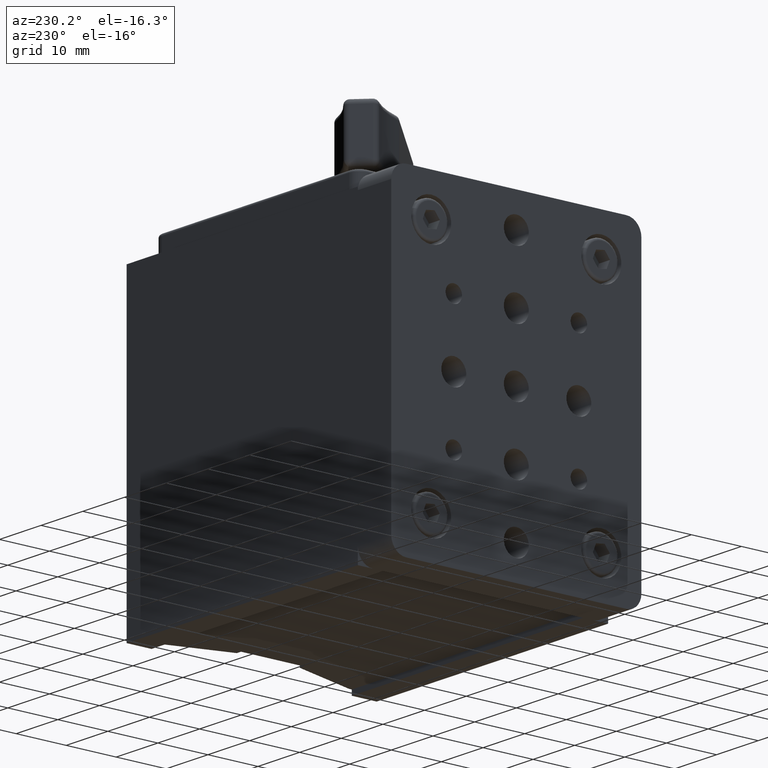
[diagram: clean part render]
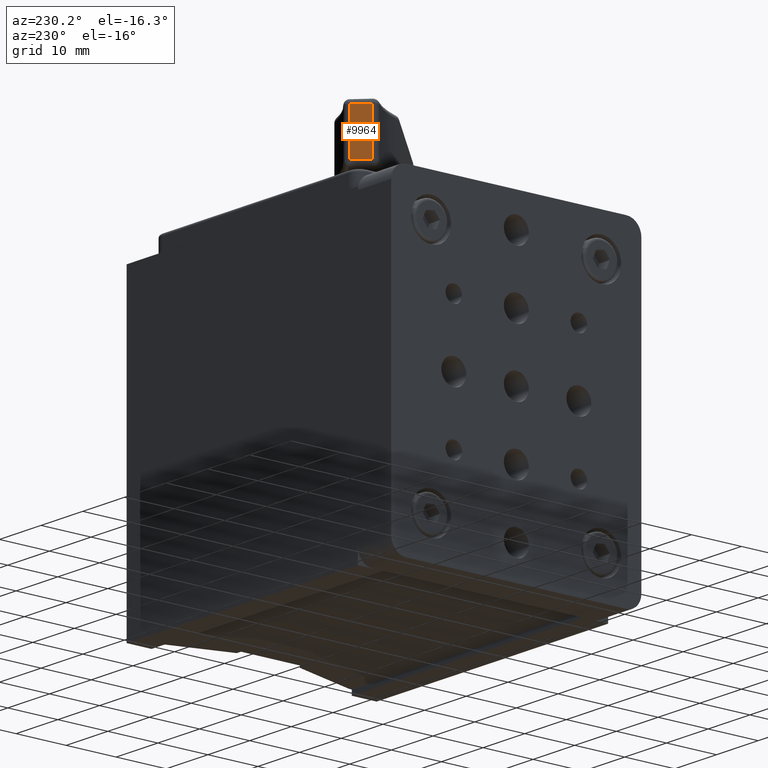
[diagram: same view with one face highlighted and labeled with its STEP entity id]
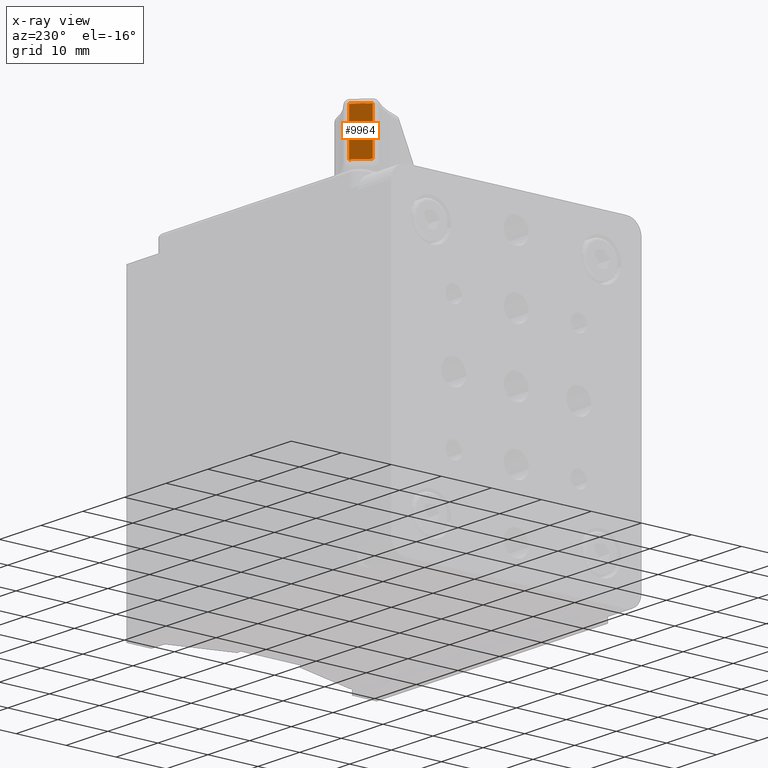
[diagram: x-ray of the same camera — body ghosted, the highlighted face saturated]
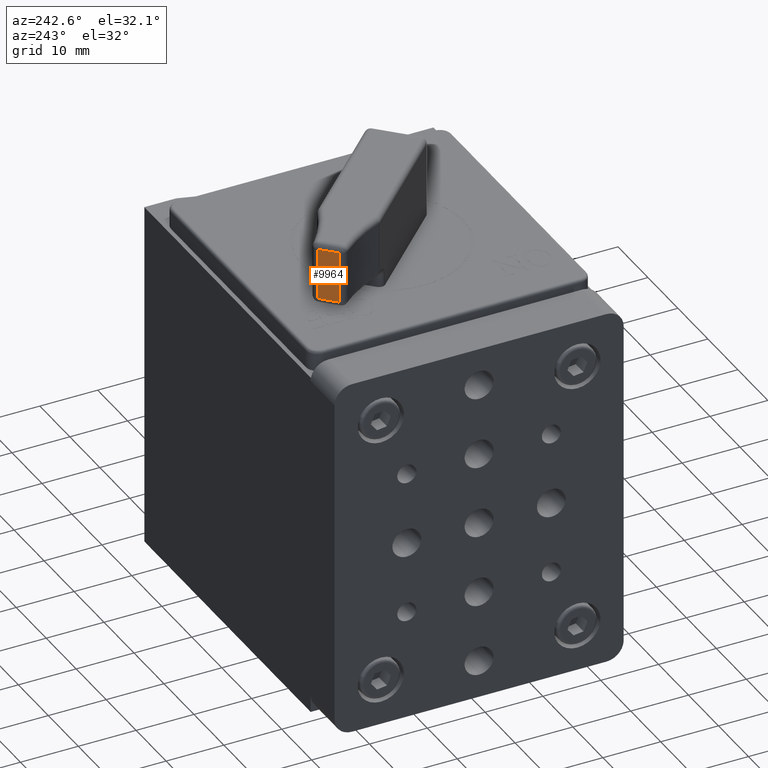
[diagram: same view with one face highlighted and labeled with its STEP entity id]
A machine part, auxiliary view. The second image highlights one B-rep face of the part: STEP entity #9964.
The next image is the same camera in x-ray: the body ghosted, the highlighted face saturated — about 0% of this face is hidden behind the body in this view.
A second angle (auxiliary view) of the same face is appended — the face is thin or edge-on in the first view.
In plain terms, the highlighted planar face has unit normal (0.7071, -0.7071, 0).
Its self-contained STEP definition (entity closure, byte-faithful):
#96 = ORIENTED_EDGE ( 'NONE', *, *, #11752, .T. ) ;
#184 = CARTESIAN_POINT ( 'NONE',  ( 9.248345916706556500, 19.04557663229474300, 45.50000000000000700 ) ) ;
#1064 = AXIS2_PLACEMENT_3D ( 'NONE', #6381, #3347, #5391 ) ;
#1076 = CARTESIAN_POINT ( 'NONE',  ( 6.704423367705512500, 16.50165408329370100, 36.60000000000000900 ) ) ;
#1593 = VECTOR ( 'NONE', #12431, 999.9999999999998900 ) ;
#1671 = EDGE_CURVE ( 'NONE', #5721, #12240, #5785, .T. ) ;
#1691 = VECTOR ( 'NONE', #4859, 1000.000000000000000 ) ;
#2641 = VERTEX_POINT ( 'NONE', #184 ) ;
#2944 = LINE ( 'NONE', #10708, #1691 ) ;
#3347 = DIRECTION ( 'NONE',  ( 0.7071067811865479100, -0.7071067811865472400, 0.0000000000000000000 ) ) ;
#3476 = EDGE_LOOP ( 'NONE', ( #4191, #96, #3583, #11493 ) ) ;
#3583 = ORIENTED_EDGE ( 'NONE', *, *, #1671, .T. ) ;
#3745 = VERTEX_POINT ( 'NONE', #11388 ) ;
#4100 = VECTOR ( 'NONE', #6035, 1000.000000000000000 ) ;
#4191 = ORIENTED_EDGE ( 'NONE', *, *, #7019, .T. ) ;
#4595 = CARTESIAN_POINT ( 'NONE',  ( 9.920928290469074500, 19.71815900605726300, 45.50000000000000700 ) ) ;
#4821 = EDGE_CURVE ( 'NONE', #12240, #2641, #8175, .T. ) ;
#4859 = DIRECTION ( 'NONE',  ( 0.0000000000000000000, 0.0000000000000000000, -1.000000000000000000 ) ) ;
#5391 = DIRECTION ( 'NONE',  ( 0.7071067811865472400, 0.7071067811865479100, 0.0000000000000000000 ) ) ;
#5721 = VERTEX_POINT ( 'NONE', #1076 ) ;
#5738 = LINE ( 'NONE', #6709, #8645 ) ;
#5781 = FACE_OUTER_BOUND ( 'NONE', #3476, .T. ) ;
#5785 = LINE ( 'NONE', #10836, #4100 ) ;
#6035 = DIRECTION ( 'NONE',  ( -0.0000000000000000000, -0.0000000000000000000, 1.000000000000000000 ) ) ;
#6381 = CARTESIAN_POINT ( 'NONE',  ( 6.031840993943063700, 15.82907170953125100, 46.50000000000000700 ) ) ;
#6620 = DIRECTION ( 'NONE',  ( -0.7071067811865472400, -0.7071067811865479100, 0.0000000000000000000 ) ) ;
#6709 = CARTESIAN_POINT ( 'NONE',  ( 6.031840993943063700, 15.82907170953125100, 36.60000000000000900 ) ) ;
#7019 = EDGE_CURVE ( 'NONE', #2641, #3745, #2944, .T. ) ;
#8015 = CARTESIAN_POINT ( 'NONE',  ( 6.704423367705512500, 16.50165408329370100, 45.50000000000000700 ) ) ;
#8175 = LINE ( 'NONE', #4595, #1593 ) ;
#8645 = VECTOR ( 'NONE', #6620, 999.9999999999998900 ) ;
#9328 = PLANE ( 'NONE',  #1064 ) ;
#9964 = ADVANCED_FACE ( 'NONE', ( #5781 ), #9328, .F. ) ;
#10708 = CARTESIAN_POINT ( 'NONE',  ( 9.248345916706556500, 19.04557663229474700, 46.50000000000000700 ) ) ;
#10836 = CARTESIAN_POINT ( 'NONE',  ( 6.704423367705512500, 16.50165408329370100, 46.50000000000000700 ) ) ;
#11388 = CARTESIAN_POINT ( 'NONE',  ( 9.248345916706556500, 19.04557663229474700, 36.60000000000000900 ) ) ;
#11493 = ORIENTED_EDGE ( 'NONE', *, *, #4821, .T. ) ;
#11752 = EDGE_CURVE ( 'NONE', #3745, #5721, #5738, .T. ) ;
#12240 = VERTEX_POINT ( 'NONE', #8015 ) ;
#12431 = DIRECTION ( 'NONE',  ( 0.7071067811865472400, 0.7071067811865479100, -0.0000000000000000000 ) ) ;